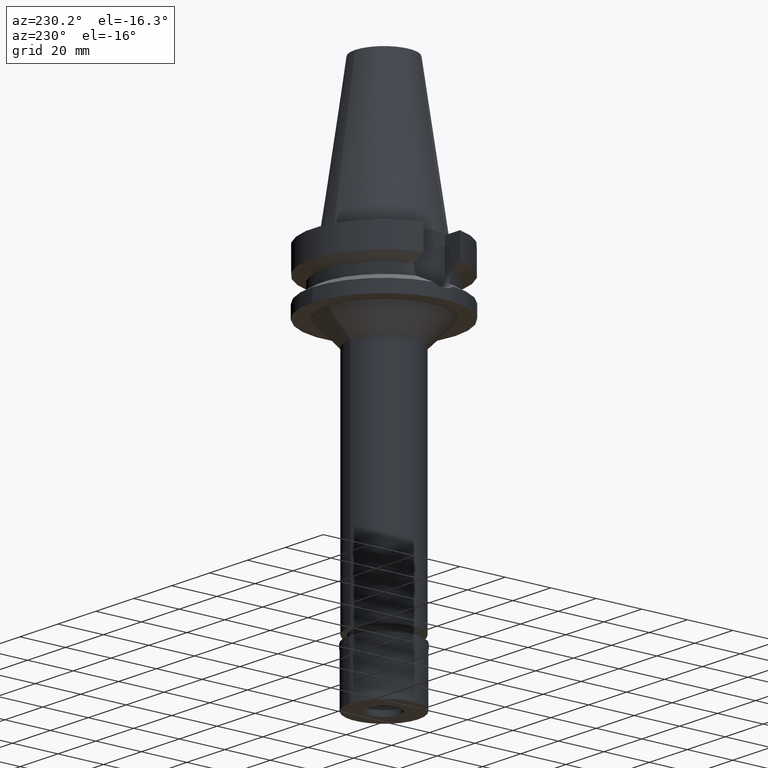
[diagram: clean part render]
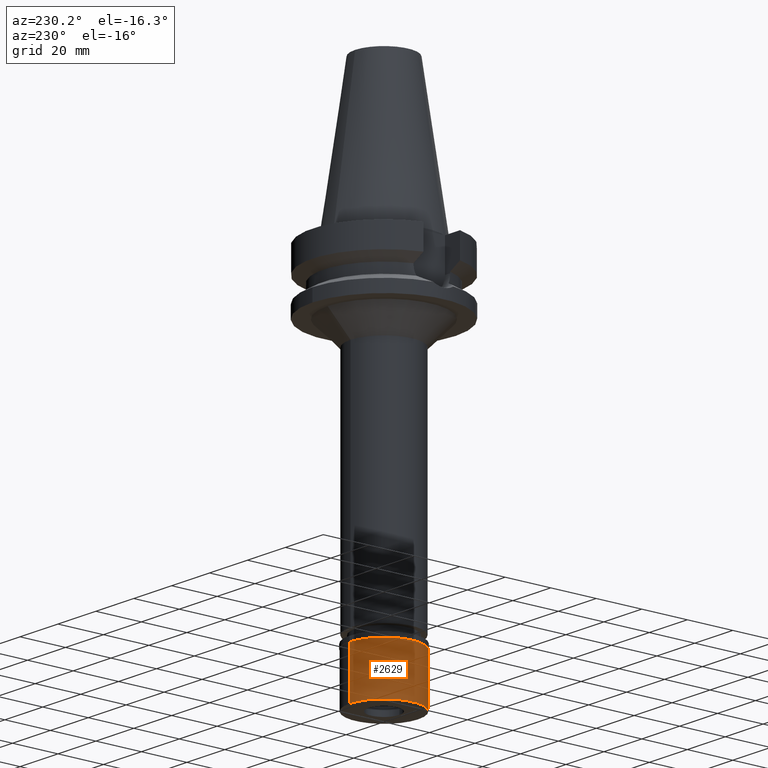
[diagram: same view with one face highlighted and labeled with its STEP entity id]
A machine part, auxiliary view. The second image highlights one B-rep face of the part: STEP entity #2629.
In plain terms, the highlighted cylindrical surface (partial cylindrical patch) has radius 15 mm, axis along (0, 0, -1).
Its self-contained STEP definition (entity closure, byte-faithful):
#97 = EDGE_CURVE ( 'NONE', #1519, #2821, #564, .T. ) ;
#124 = CARTESIAN_POINT ( 'NONE',  ( 0.0000000000000000000, 0.0000000000000000000, 0.0000000000000000000 ) ) ;
#152 = EDGE_CURVE ( 'NONE', #2821, #650, #3023, .T. ) ;
#188 = DIRECTION ( 'NONE',  ( 0.0000000000000000000, 0.0000000000000000000, -1.000000000000000000 ) ) ;
#564 = CIRCLE ( 'NONE', #1560, 15.00000000000000000 ) ;
#623 = CARTESIAN_POINT ( 'NONE',  ( 0.0000000000000000000, 15.00000000000000000, -23.80000000000000071 ) ) ;
#643 = DIRECTION ( 'NONE',  ( 0.0000000000000000000, -1.000000000000000000, 0.0000000000000000000 ) ) ;
#650 = VERTEX_POINT ( 'NONE', #623 ) ;
#652 = EDGE_CURVE ( 'NONE', #1519, #2205, #1349, .T. ) ;
#679 = EDGE_CURVE ( 'NONE', #650, #2205, #2936, .T. ) ;
#682 = DIRECTION ( 'NONE',  ( 0.0000000000000000000, 0.0000000000000000000, -1.000000000000000000 ) ) ;
#1150 = CARTESIAN_POINT ( 'NONE',  ( 0.0000000000000000000, -15.00000000000000000, -2.100000000000000089 ) ) ;
#1151 = CARTESIAN_POINT ( 'NONE',  ( 0.0000000000000000000, 15.00000000000000000, -2.100000000000000089 ) ) ;
#1295 = CYLINDRICAL_SURFACE ( 'NONE', #2236, 15.00000000000000000 ) ;
#1349 = LINE ( 'NONE', #1150, #2774 ) ;
#1383 = DIRECTION ( 'NONE',  ( 0.0000000000000000000, 0.0000000000000000000, -1.000000000000000000 ) ) ;
#1414 = VECTOR ( 'NONE', #1383, 1000.000000000000000 ) ;
#1456 = ORIENTED_EDGE ( 'NONE', *, *, #679, .T. ) ;
#1506 = FACE_OUTER_BOUND ( 'NONE', #2358, .T. ) ;
#1519 = VERTEX_POINT ( 'NONE', #2978 ) ;
#1525 = DIRECTION ( 'NONE',  ( 0.0000000000000000000, -1.000000000000000000, 0.0000000000000000000 ) ) ;
#1560 = AXIS2_PLACEMENT_3D ( 'NONE', #1837, #682, #643 ) ;
#1585 = CARTESIAN_POINT ( 'NONE',  ( 0.0000000000000000000, -15.00000000000000000, -23.80000000000000071 ) ) ;
#1615 = CARTESIAN_POINT ( 'NONE',  ( 0.0000000000000000000, 0.0000000000000000000, -23.80000000000000071 ) ) ;
#1759 = ORIENTED_EDGE ( 'NONE', *, *, #97, .T. ) ;
#1837 = CARTESIAN_POINT ( 'NONE',  ( 0.0000000000000000000, 0.0000000000000000000, -2.100000000000000089 ) ) ;
#2205 = VERTEX_POINT ( 'NONE', #1585 ) ;
#2211 = DIRECTION ( 'NONE',  ( 0.0000000000000000000, 0.0000000000000000000, -1.000000000000000000 ) ) ;
#2236 = AXIS2_PLACEMENT_3D ( 'NONE', #124, #2211, #1525 ) ;
#2262 = ORIENTED_EDGE ( 'NONE', *, *, #652, .F. ) ;
#2272 = DIRECTION ( 'NONE',  ( 0.0000000000000000000, 1.000000000000000000, 0.0000000000000000000 ) ) ;
#2299 = ORIENTED_EDGE ( 'NONE', *, *, #152, .T. ) ;
#2358 = EDGE_LOOP ( 'NONE', ( #1456, #2262, #1759, #2299 ) ) ;
#2368 = AXIS2_PLACEMENT_3D ( 'NONE', #1615, #2586, #2272 ) ;
#2586 = DIRECTION ( 'NONE',  ( 0.0000000000000000000, 0.0000000000000000000, 1.000000000000000000 ) ) ;
#2629 = ADVANCED_FACE ( 'NONE', ( #1506 ), #1295, .T. ) ;
#2762 = CARTESIAN_POINT ( 'NONE',  ( 0.0000000000000000000, 15.00000000000000000, -2.100000000000000089 ) ) ;
#2774 = VECTOR ( 'NONE', #188, 1000.000000000000000 ) ;
#2821 = VERTEX_POINT ( 'NONE', #1151 ) ;
#2936 = CIRCLE ( 'NONE', #2368, 15.00000000000000000 ) ;
#2978 = CARTESIAN_POINT ( 'NONE',  ( 0.0000000000000000000, -15.00000000000000000, -2.100000000000000089 ) ) ;
#3023 = LINE ( 'NONE', #2762, #1414 ) ;